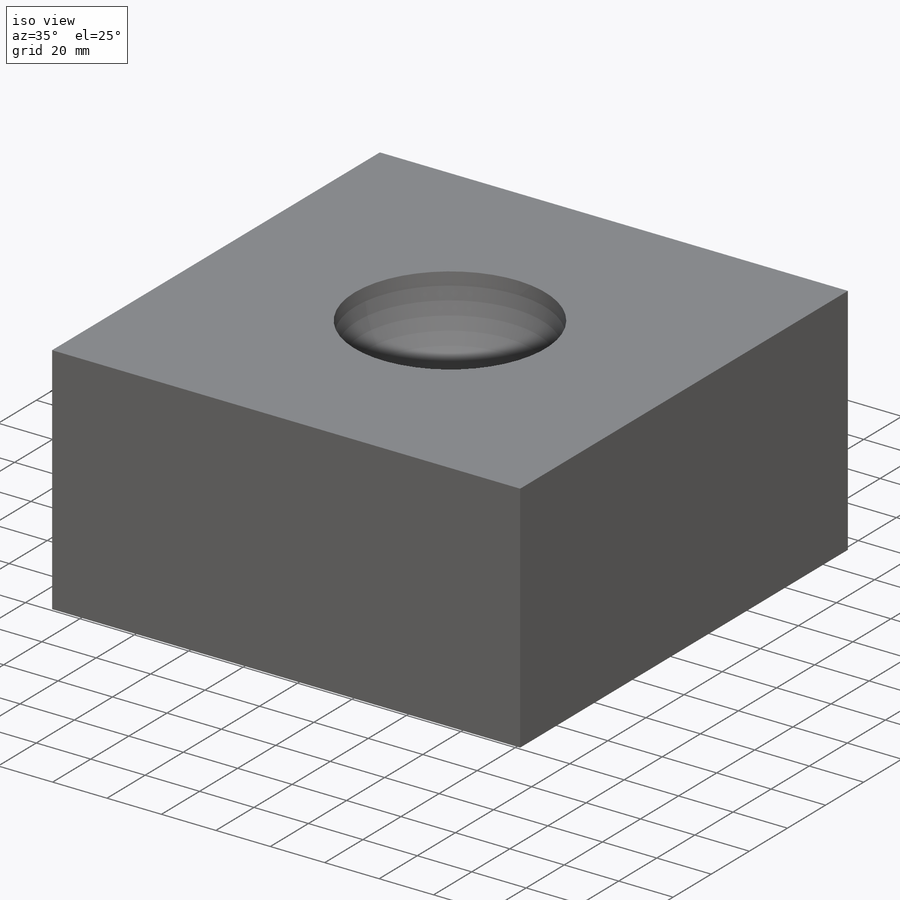
[diagram: iso view]
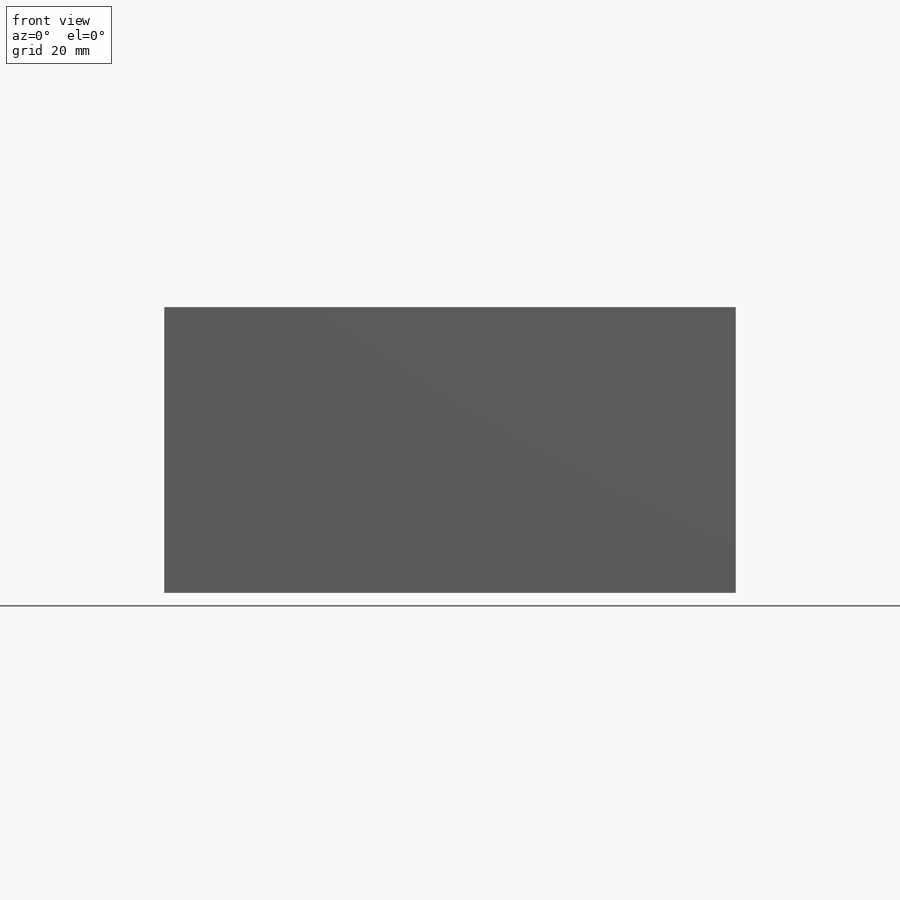
[diagram: front view]
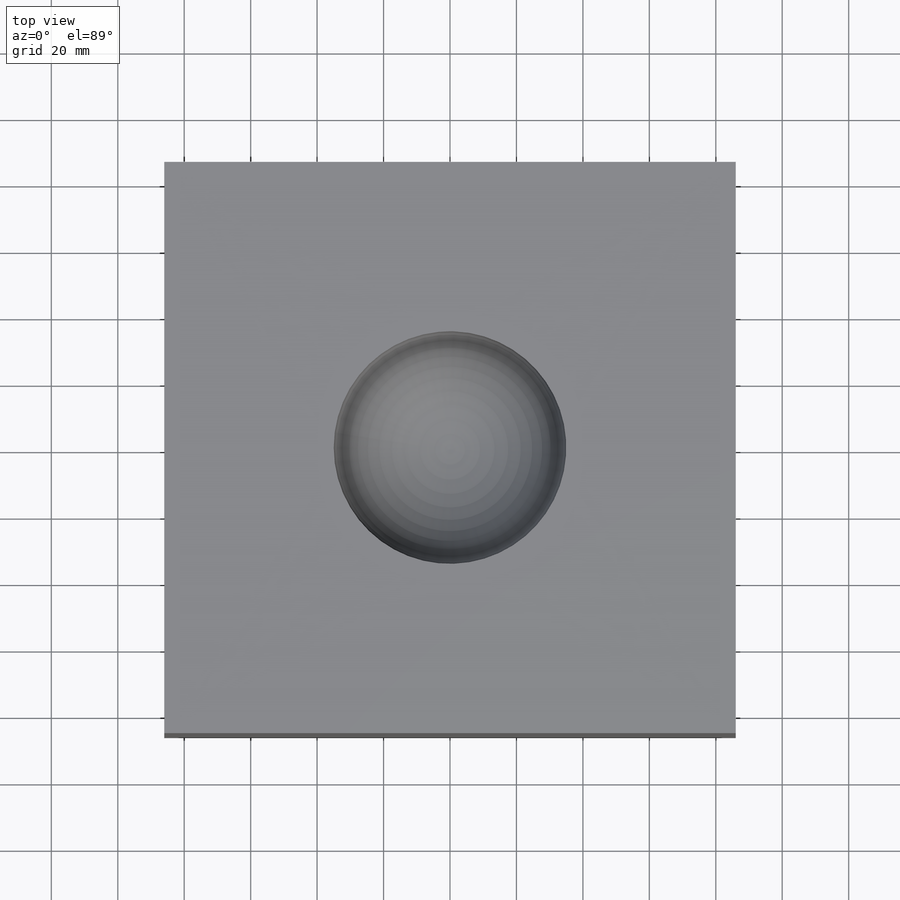
[diagram: top view]
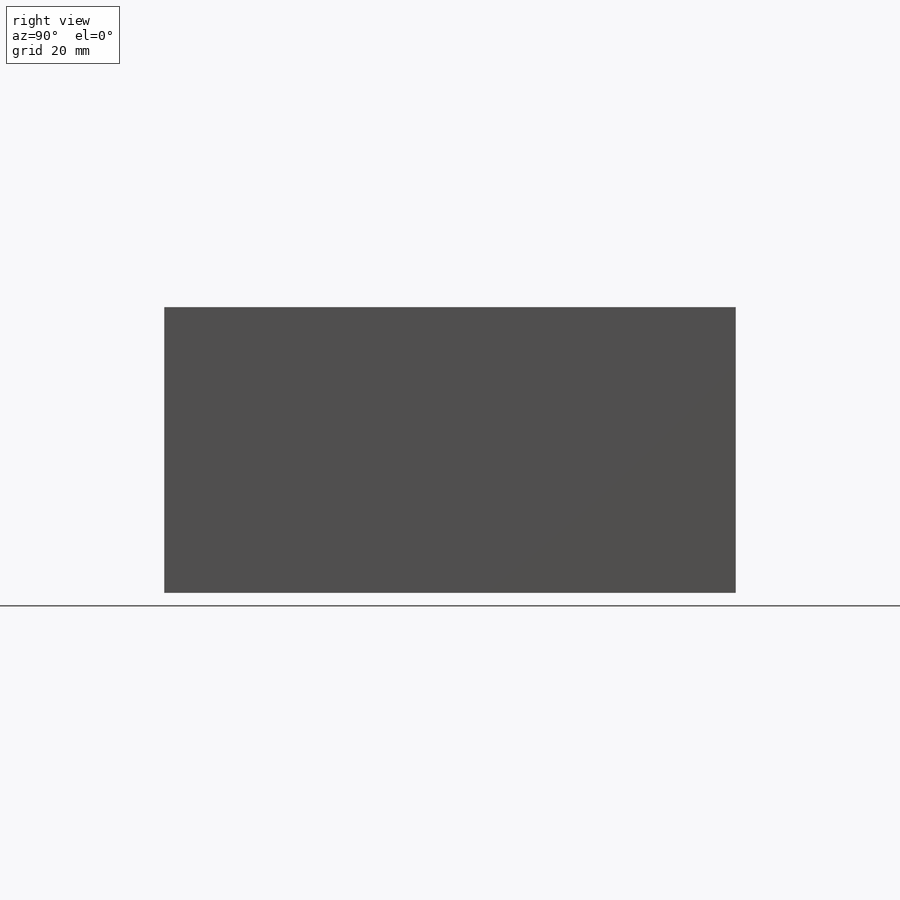
[diagram: right view]
SOLIDWORKS PART (.sldprt)
format: sldprt  version: not decoded by parser v0  size: 188,416 bytes
history: native  units: mm
features: sketch x3, material x1, extrude x1, cut_revolve x1, cut_extrude x1 (+13 scaffold rows collapsed)
feature tree (20):
  scaffold x13  (default folders/planes/origin — collapsed)
  material  "Refractory Clay"
  sketch  "Sketch1"  dims[D1=172.0mm D2=172.0mm]
  extrude  "Boss-Extrude1"  Depth=86mm
  sketch  "Sketch2"  dims[D1=35.0mm]
  cut_revolve  "Cut-Revolve1"  Angle=360deg
  cut_extrude  "Cut-Extrude1"  [1 undecoded]
  sketch  "Sketch3"  dims[c1.D1=7.1374mm c1.D2=139.7mm c1.D3=69.85mm c2.D2=139.7mm c2.D1=2.54mm]
decode coverage: 5 of 6 modeling features carry decoded parameters
note: 1 parameter value undecoded
note: suppression state not decoded; provenance and decode notes live in map.json
